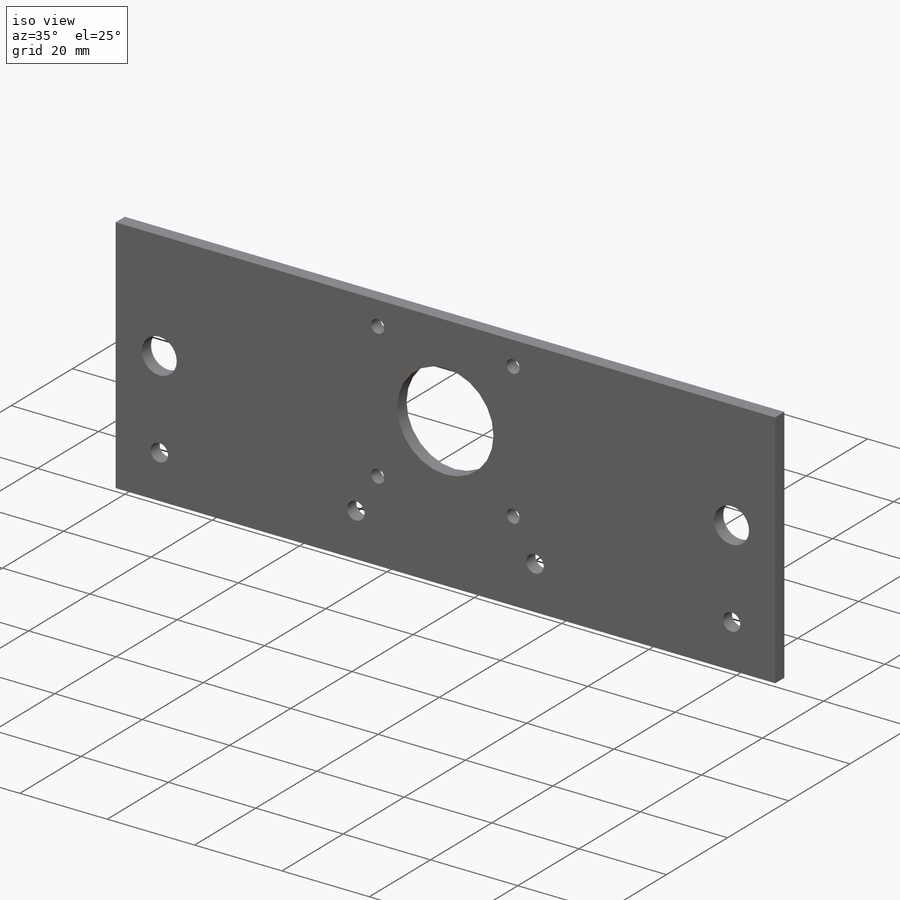
[diagram: iso view]
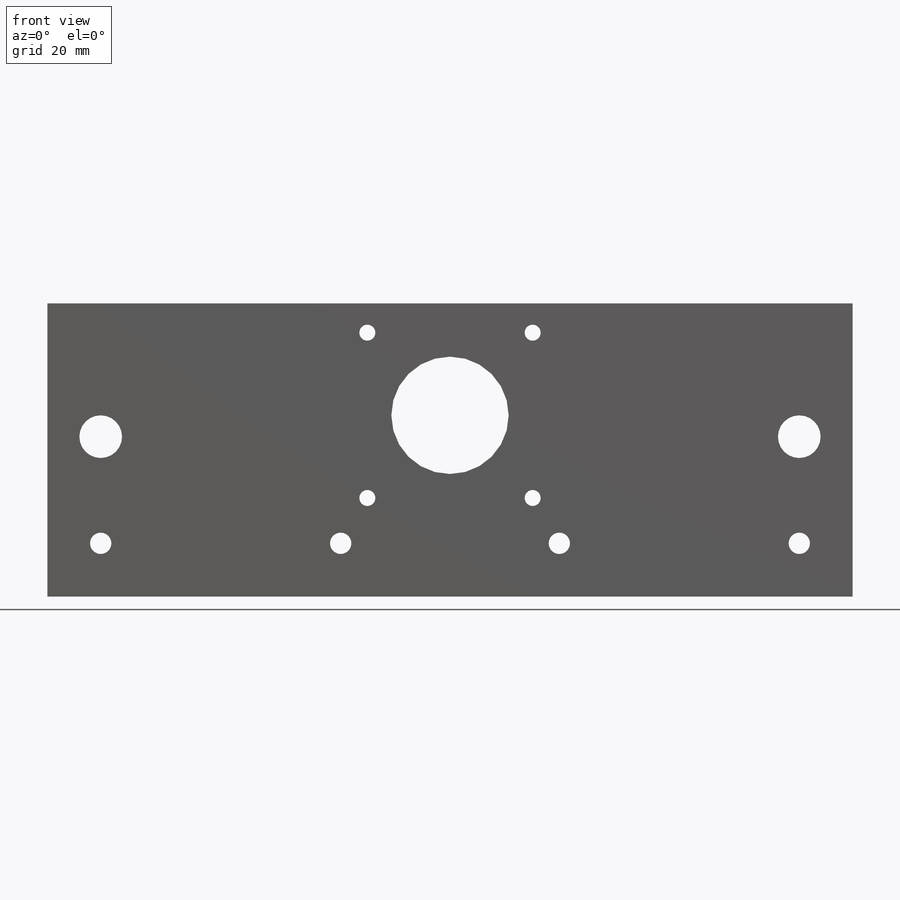
[diagram: front view]
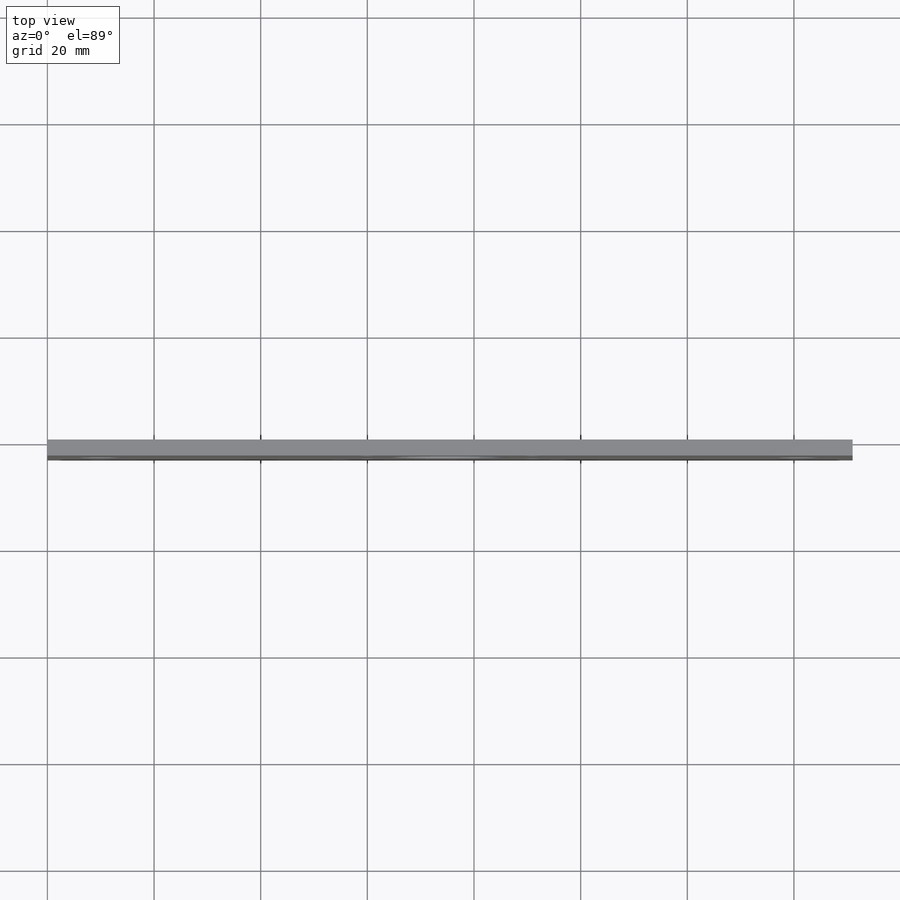
[diagram: top view]
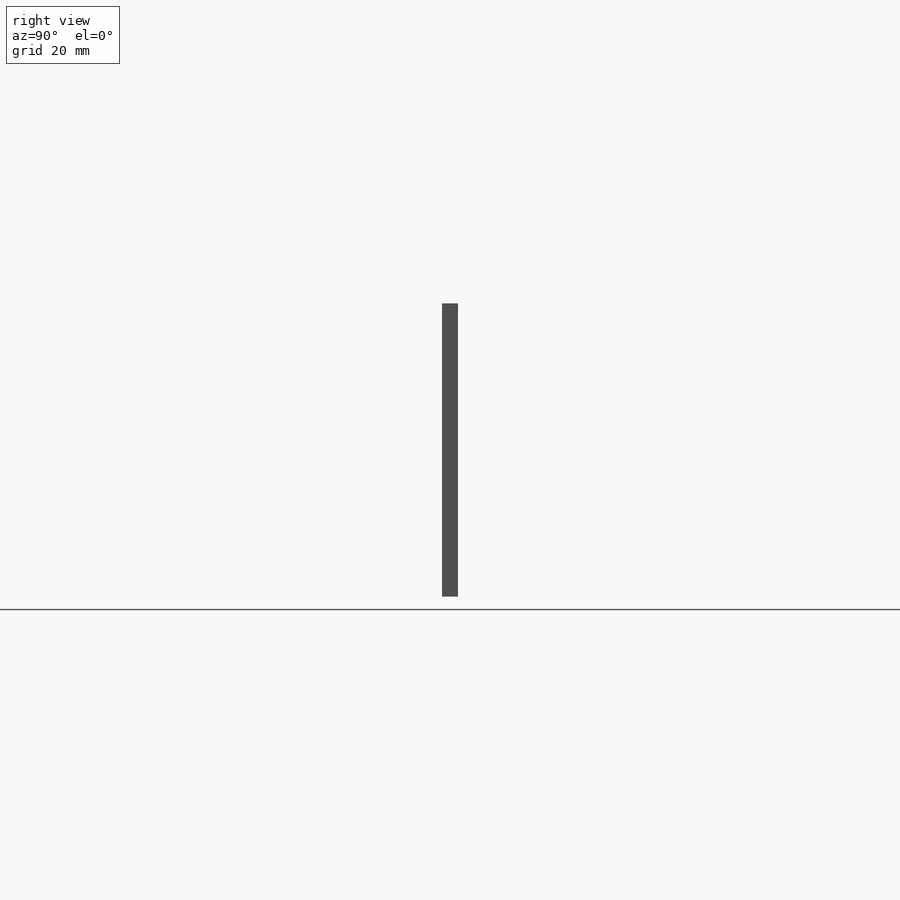
[diagram: right view]
SOLIDWORKS PART (.sldprt)
format: sldprt  version: not decoded by parser v0  size: 217,088 bytes
history: native  units: mm
features: sketch x5, cut_extrude x4, plane x3, material x1, extrude x1 (+9 scaffold rows collapsed)
feature tree (23):
  scaffold x9  (default folders/planes/origin — collapsed)
  material  "Material <nicht festgelegt>"
  plane  "Ebene vorne"
  plane  "Ebene oben"
  plane  "Ebene rechts"
  sketch  "Skizze1"  dims[D1=55.0mm D2=151.0mm]
  extrude  "Aufsatz-Linear austragen1"  Depth=3mm
  sketch  "Skizze2"  dims[D1=22.0mm D2=34.0mm D3=75.5mm]
  cut_extrude  "Schnitt-Linear austragen1"  Depth=17mm
  sketch  "Skizze3"  dims[D4=3.0mm D1=31.0mm D2=60.0mm D3=5.5mm D5=31.0mm]
  cut_extrude  "Schnitt-Linear austragen2"  Depth=10mm
  sketch  "Skizze4"  dims[D1=8.0mm D2=10.0mm D3=30.0mm D4=10.0mm]
  cut_extrude  "Schnitt-Linear austragen3"  Depth=10mm
  sketch  "Skizze5"  dims[D1=4.0mm D2=10.0mm D3=10.0mm D4=10.0mm D5=55.0mm D6=55.0mm]
  cut_extrude  "Schnitt-Linear austragen4"  Depth=10mm
decode coverage: 10 of 10 modeling features carry decoded parameters
note: suppression state not decoded; provenance and decode notes live in map.json
